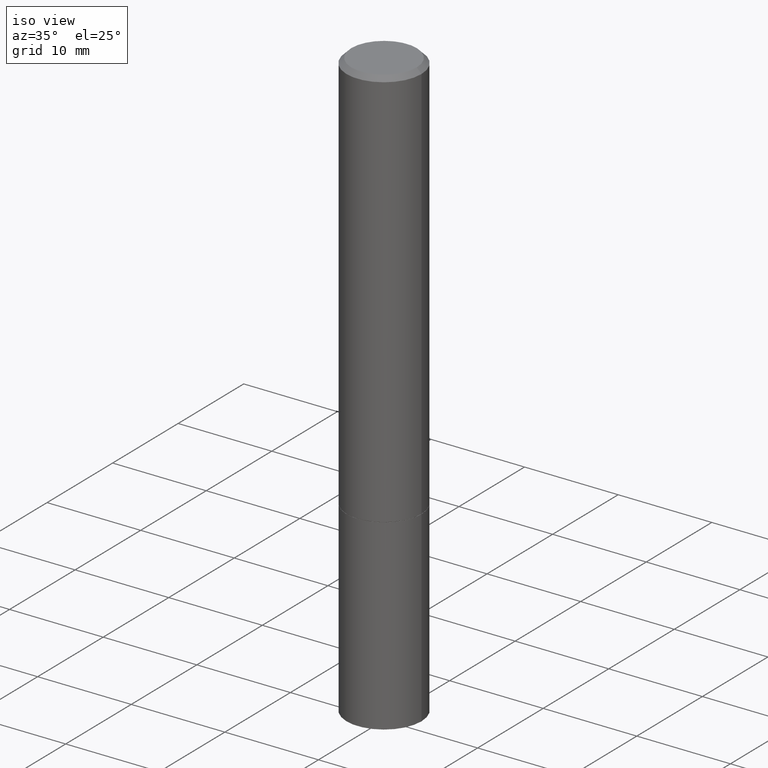
[diagram: clean part render]
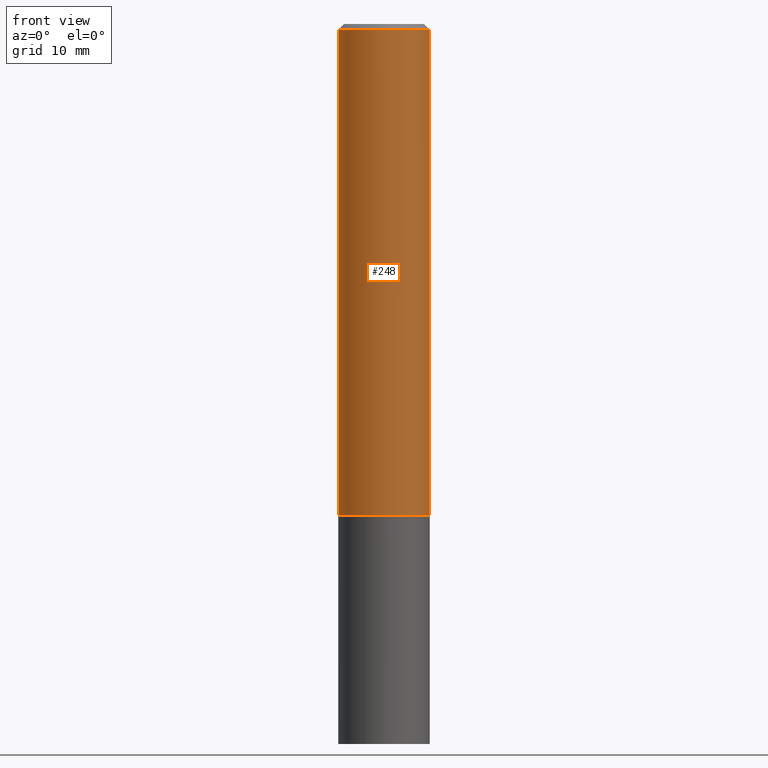
[diagram: tour spotlight — one face highlighted and labeled with its STEP entity id]
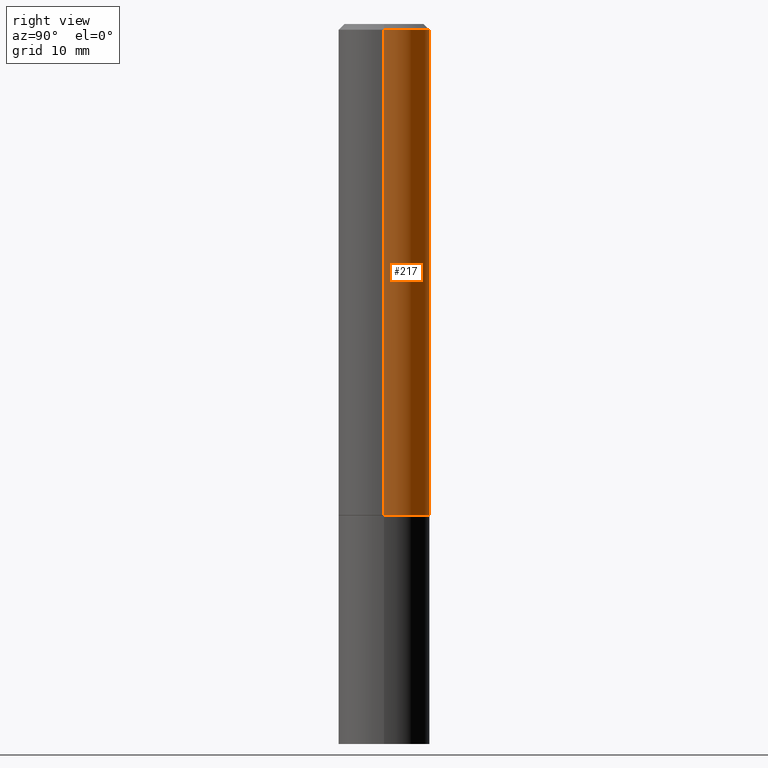
[diagram: tour spotlight — one face highlighted and labeled with its STEP entity id]
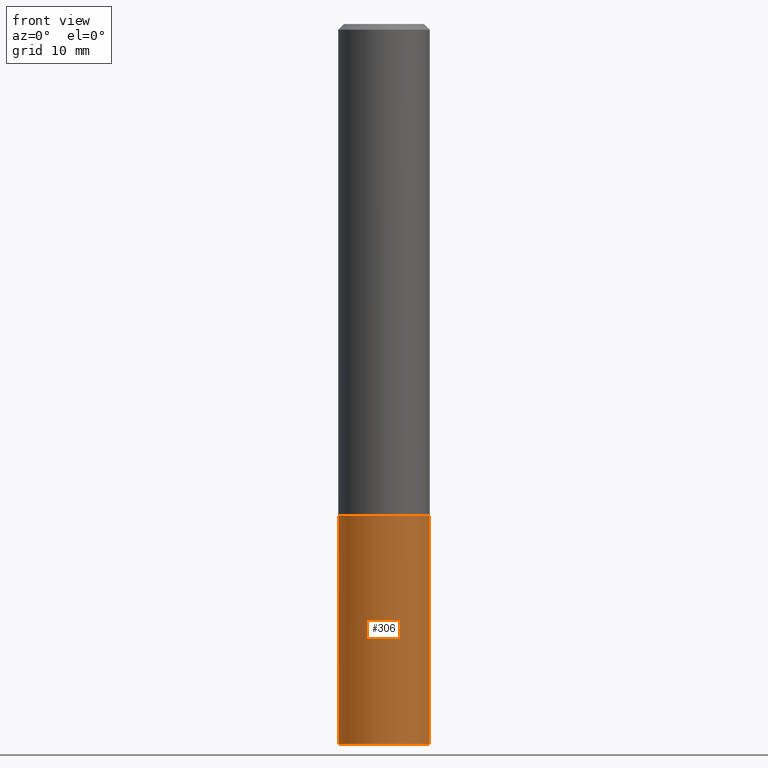
[diagram: tour spotlight — one face highlighted and labeled with its STEP entity id]
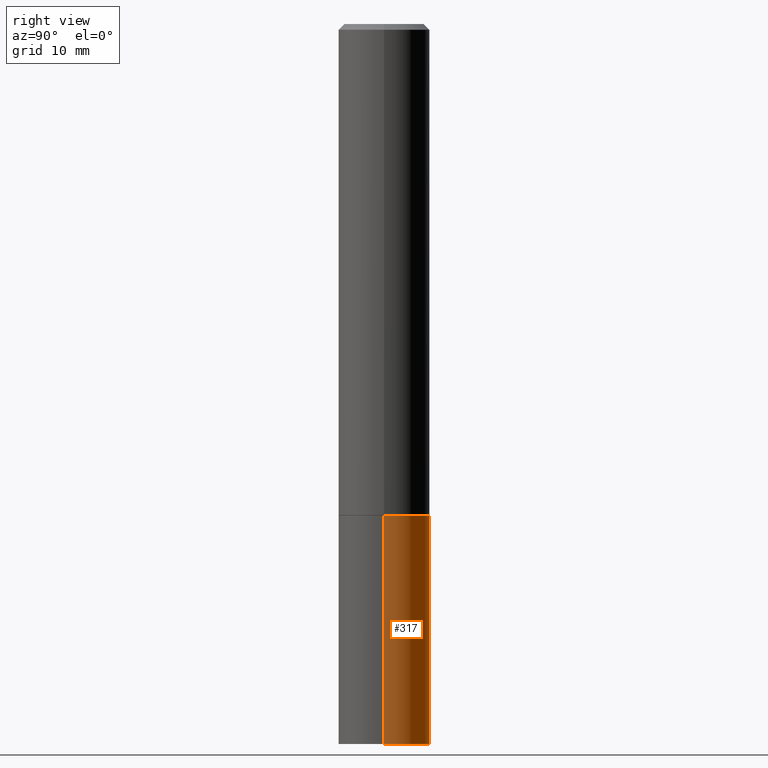
[diagram: tour spotlight — one face highlighted and labeled with its STEP entity id]
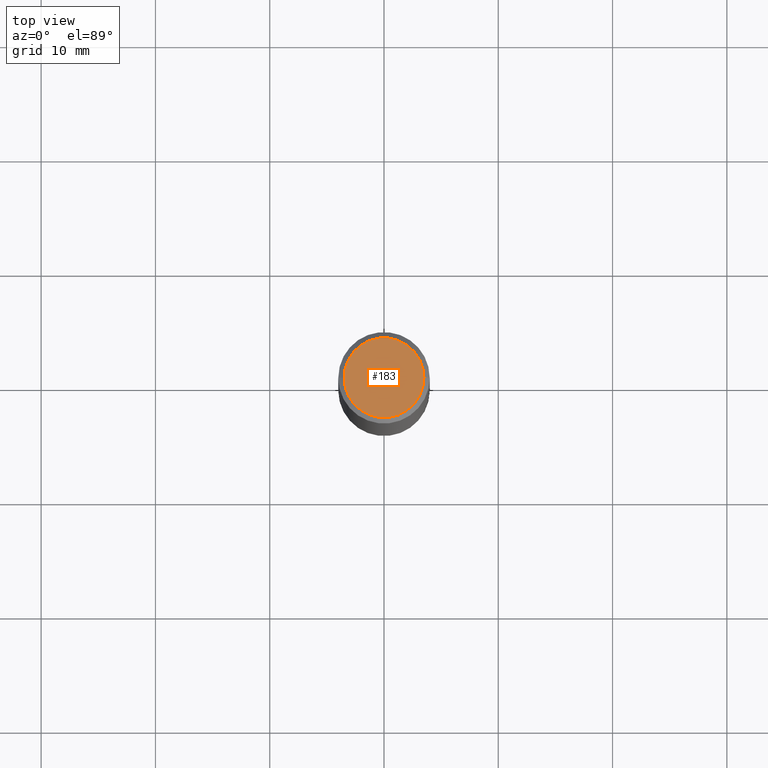
[diagram: tour spotlight — one face highlighted and labeled with its STEP entity id]
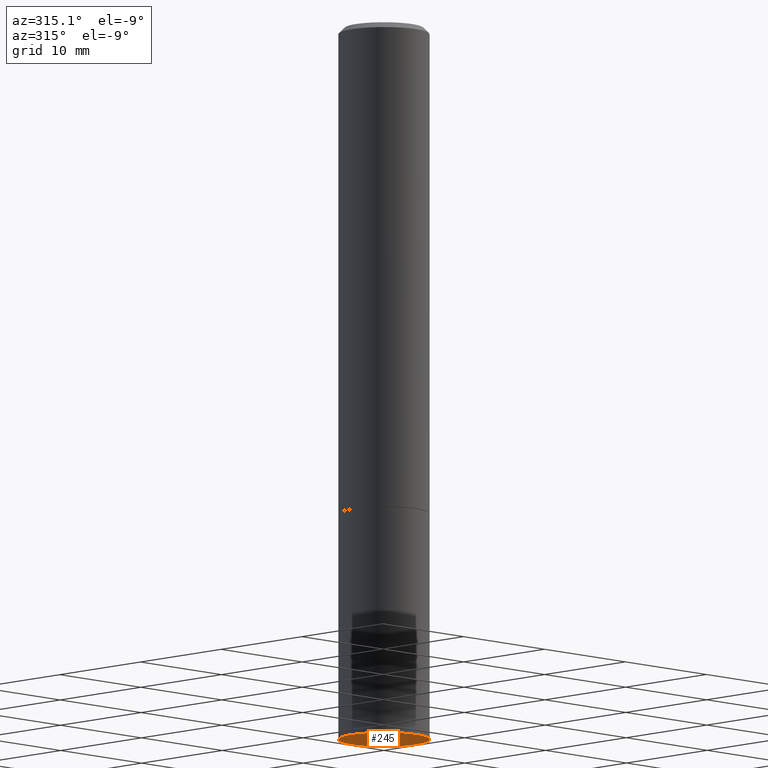
[diagram: tour spotlight — one face highlighted and labeled with its STEP entity id]
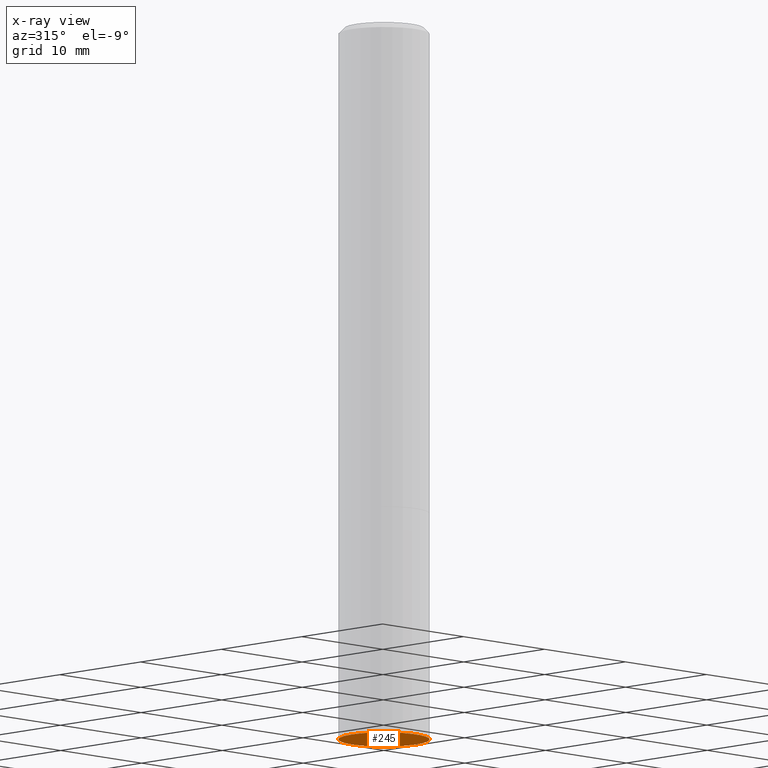
[diagram: x-ray of the same camera — body ghosted, this tour face saturated]
A machine part: a face-by-face anatomy tour. The part has 12 B-rep faces; the first image is the clean iso view, then the 6 largest visible faces are spotlighted one at a time (largest first), each with its STEP entity span.

Face 1 — front view, entity #248. In plain terms, the highlighted cylindrical surface (partial cylindrical patch) has radius 4.0005 mm, axis along (-0, 0, 1).
Definition (entity closure, byte-faithful):
#1 = LINE ( 'NONE', #113, #77 ) ;
#10 = EDGE_CURVE ( 'NONE', #230, #295, #103, .T. ) ;
#11 = VECTOR ( 'NONE', #270, 39.37007874015748143 ) ;
#32 = CARTESIAN_POINT ( 'NONE',  ( 4.890937612370279289E-31, -6.982962677686299005E-17, -0.02000000000000002470 ) ) ;
#34 = DIRECTION ( 'NONE',  ( -2.445468806185136597E-29, 3.491481338843145583E-15, 1.000000000000000000 ) ) ;
#38 = FACE_OUTER_BOUND ( 'NONE', #127, .T. ) ;
#43 = ORIENTED_EDGE ( 'NONE', *, *, #117, .F. ) ;
#51 = EDGE_CURVE ( 'NONE', #242, #131, #97, .T. ) ;
#65 = CARTESIAN_POINT ( 'NONE',  ( 0.1574999999999998901, -1.099816621735586297E-15, 7.679978421878593829E-30 ) ) ;
#77 = VECTOR ( 'NONE', #199, 39.37007874015748143 ) ;
#94 = CYLINDRICAL_SURFACE ( 'NONE', #198, 0.1574999999999998901 ) ;
#97 = CIRCLE ( 'NONE', #277, 0.1575000000000000011 ) ;
#98 = CARTESIAN_POINT ( 'NONE',  ( -0.1574999999999998346, 1.029986994958722802E-15, -0.02000000000000002470 ) ) ;
#103 = CIRCLE ( 'NONE', #210, 0.1574999999999998346 ) ;
#113 = CARTESIAN_POINT ( 'NONE',  ( -0.1574999999999998901, 1.119104808822157012E-15, -7.747322767151471379E-30 ) ) ;
#117 = EDGE_CURVE ( 'NONE', #242, #230, #1, .T. ) ;
#127 = EDGE_LOOP ( 'NONE', ( #43, #360, #316, #185 ) ) ;
#130 = CARTESIAN_POINT ( 'NONE',  ( -0.1575000000000000011, -1.869428643160630319E-15, -1.691899999999999959 ) ) ;
#131 = VERTEX_POINT ( 'NONE', #325 ) ;
#139 = CARTESIAN_POINT ( 'NONE',  ( 0.1574999999999998346, -1.150358061425878091E-15, -0.02000000000000002470 ) ) ;
#173 = DIRECTION ( 'NONE',  ( 1.000000000000000000, -6.982962677686268288E-15, 0.000000000000000000 ) ) ;
#185 = ORIENTED_EDGE ( 'NONE', *, *, #10, .F. ) ;
#198 = AXIS2_PLACEMENT_3D ( 'NONE', #236, #348, #215 ) ;
#199 = DIRECTION ( 'NONE',  ( -2.445468806185136877E-29, 3.491481338843145188E-15, 1.000000000000000000 ) ) ;
#201 = DIRECTION ( 'NONE',  ( 1.000000000000000000, -6.982962677686265922E-15, 0.000000000000000000 ) ) ;
#210 = AXIS2_PLACEMENT_3D ( 'NONE', #32, #34, #201 ) ;
#215 = DIRECTION ( 'NONE',  ( 1.000000000000000000, -6.982962677686266711E-15, 4.876176775795935793E-29 ) ) ;
#230 = VERTEX_POINT ( 'NONE', #98 ) ;
#236 = CARTESIAN_POINT ( 'NONE',  ( 0.000000000000000000, 0.000000000000000000, 0.000000000000000000 ) ) ;
#242 = VERTEX_POINT ( 'NONE', #130 ) ;
#248 = ADVANCED_FACE ( 'NONE', ( #38 ), #94, .T. ) ;
#270 = DIRECTION ( 'NONE',  ( -2.445468806185136877E-29, 3.491481338843145188E-15, 1.000000000000000000 ) ) ;
#274 = EDGE_CURVE ( 'NONE', #131, #295, #321, .T. ) ;
#277 = AXIS2_PLACEMENT_3D ( 'NONE', #311, #346, #173 ) ;
#295 = VERTEX_POINT ( 'NONE', #139 ) ;
#311 = CARTESIAN_POINT ( 'NONE',  ( 4.137488673184632754E-29, -5.907237277188718068E-15, -1.691899999999999959 ) ) ;
#316 = ORIENTED_EDGE ( 'NONE', *, *, #274, .T. ) ;
#321 = LINE ( 'NONE', #65, #11 ) ;
#325 = CARTESIAN_POINT ( 'NONE',  ( 0.1575000000000000011, -7.007053898924305548E-15, -1.691899999999999959 ) ) ;
#346 = DIRECTION ( 'NONE',  ( -2.445468806185136597E-29, 3.491481338843145583E-15, 1.000000000000000000 ) ) ;
#348 = DIRECTION ( 'NONE',  ( -2.445468806185136597E-29, 3.491481338843145583E-15, 1.000000000000000000 ) ) ;
#360 = ORIENTED_EDGE ( 'NONE', *, *, #51, .T. ) ;

Face 2 — right view, entity #217. In plain terms, the highlighted cylindrical surface (partial cylindrical patch) has radius 4.0005 mm, axis along (-0, 0, 1).
Definition (entity closure, byte-faithful):
#1 = LINE ( 'NONE', #113, #77 ) ;
#9 = DIRECTION ( 'NONE',  ( -2.445468806185136597E-29, 3.491481338843145583E-15, 1.000000000000000000 ) ) ;
#11 = VECTOR ( 'NONE', #270, 39.37007874015748143 ) ;
#26 = EDGE_CURVE ( 'NONE', #131, #242, #188, .T. ) ;
#30 = ORIENTED_EDGE ( 'NONE', *, *, #274, .F. ) ;
#35 = AXIS2_PLACEMENT_3D ( 'NONE', #286, #83, #37 ) ;
#37 = DIRECTION ( 'NONE',  ( 1.000000000000000000, -6.982962677686265922E-15, 0.000000000000000000 ) ) ;
#45 = DIRECTION ( 'NONE',  ( -2.445468806185136597E-29, 3.491481338843145583E-15, 1.000000000000000000 ) ) ;
#65 = CARTESIAN_POINT ( 'NONE',  ( 0.1574999999999998901, -1.099816621735586297E-15, 7.679978421878593829E-30 ) ) ;
#68 = EDGE_LOOP ( 'NONE', ( #129, #347, #282, #30 ) ) ;
#70 = AXIS2_PLACEMENT_3D ( 'NONE', #259, #9, #315 ) ;
#77 = VECTOR ( 'NONE', #199, 39.37007874015748143 ) ;
#83 = DIRECTION ( 'NONE',  ( -2.445468806185136597E-29, 3.491481338843145583E-15, 1.000000000000000000 ) ) ;
#98 = CARTESIAN_POINT ( 'NONE',  ( -0.1574999999999998346, 1.029986994958722802E-15, -0.02000000000000002470 ) ) ;
#101 = EDGE_CURVE ( 'NONE', #295, #230, #239, .T. ) ;
#113 = CARTESIAN_POINT ( 'NONE',  ( -0.1574999999999998901, 1.119104808822157012E-15, -7.747322767151471379E-30 ) ) ;
#117 = EDGE_CURVE ( 'NONE', #242, #230, #1, .T. ) ;
#128 = CARTESIAN_POINT ( 'NONE',  ( 0.000000000000000000, 0.000000000000000000, 0.000000000000000000 ) ) ;
#129 = ORIENTED_EDGE ( 'NONE', *, *, #26, .T. ) ;
#130 = CARTESIAN_POINT ( 'NONE',  ( -0.1575000000000000011, -1.869428643160630319E-15, -1.691899999999999959 ) ) ;
#131 = VERTEX_POINT ( 'NONE', #325 ) ;
#139 = CARTESIAN_POINT ( 'NONE',  ( 0.1574999999999998346, -1.150358061425878091E-15, -0.02000000000000002470 ) ) ;
#188 = CIRCLE ( 'NONE', #70, 0.1575000000000000011 ) ;
#199 = DIRECTION ( 'NONE',  ( -2.445468806185136877E-29, 3.491481338843145188E-15, 1.000000000000000000 ) ) ;
#217 = ADVANCED_FACE ( 'NONE', ( #293 ), #289, .T. ) ;
#230 = VERTEX_POINT ( 'NONE', #98 ) ;
#239 = CIRCLE ( 'NONE', #35, 0.1574999999999998346 ) ;
#242 = VERTEX_POINT ( 'NONE', #130 ) ;
#259 = CARTESIAN_POINT ( 'NONE',  ( 4.137488673184632754E-29, -5.907237277188718068E-15, -1.691899999999999959 ) ) ;
#270 = DIRECTION ( 'NONE',  ( -2.445468806185136877E-29, 3.491481338843145188E-15, 1.000000000000000000 ) ) ;
#274 = EDGE_CURVE ( 'NONE', #131, #295, #321, .T. ) ;
#282 = ORIENTED_EDGE ( 'NONE', *, *, #101, .F. ) ;
#286 = CARTESIAN_POINT ( 'NONE',  ( 4.890937612370279289E-31, -6.982962677686299005E-17, -0.02000000000000002470 ) ) ;
#289 = CYLINDRICAL_SURFACE ( 'NONE', #308, 0.1574999999999998901 ) ;
#293 = FACE_OUTER_BOUND ( 'NONE', #68, .T. ) ;
#295 = VERTEX_POINT ( 'NONE', #139 ) ;
#308 = AXIS2_PLACEMENT_3D ( 'NONE', #128, #45, #356 ) ;
#315 = DIRECTION ( 'NONE',  ( 1.000000000000000000, -6.982962677686268288E-15, 0.000000000000000000 ) ) ;
#321 = LINE ( 'NONE', #65, #11 ) ;
#325 = CARTESIAN_POINT ( 'NONE',  ( 0.1575000000000000011, -7.007053898924305548E-15, -1.691899999999999959 ) ) ;
#347 = ORIENTED_EDGE ( 'NONE', *, *, #117, .T. ) ;
#356 = DIRECTION ( 'NONE',  ( 1.000000000000000000, -6.982962677686266711E-15, 4.876176775795935793E-29 ) ) ;

Face 3 — front view, entity #306. In plain terms, the highlighted cylindrical surface (partial cylindrical patch) has radius 4.0005 mm, axis along (-0, 0, 1).
Definition (entity closure, byte-faithful):
#15 = EDGE_CURVE ( 'NONE', #133, #358, #339, .T. ) ;
#22 = CARTESIAN_POINT ( 'NONE',  ( 0.1575000000000000011, -1.099816621735586889E-15, 7.679978421878598033E-30 ) ) ;
#61 = VERTEX_POINT ( 'NONE', #148 ) ;
#64 = AXIS2_PLACEMENT_3D ( 'NONE', #261, #231, #89 ) ;
#75 = DIRECTION ( 'NONE',  ( 1.000000000000000000, -6.982962677686265922E-15, 4.876176775795935232E-29 ) ) ;
#82 = EDGE_CURVE ( 'NONE', #133, #312, #118, .T. ) ;
#86 = DIRECTION ( 'NONE',  ( -2.445468806185136877E-29, 3.491481338843145188E-15, 1.000000000000000000 ) ) ;
#89 = DIRECTION ( 'NONE',  ( 1.000000000000000000, -6.982962677686261977E-15, 0.000000000000000000 ) ) ;
#95 = ORIENTED_EDGE ( 'NONE', *, *, #82, .F. ) ;
#99 = ORIENTED_EDGE ( 'NONE', *, *, #191, .F. ) ;
#118 = LINE ( 'NONE', #344, #351 ) ;
#125 = LINE ( 'NONE', #22, #174 ) ;
#133 = VERTEX_POINT ( 'NONE', #186 ) ;
#140 = CARTESIAN_POINT ( 'NONE',  ( 0.000000000000000000, 0.000000000000000000, 0.000000000000000000 ) ) ;
#148 = CARTESIAN_POINT ( 'NONE',  ( 0.1575000000000000011, -7.010545380263150133E-15, -1.692900000000000293 ) ) ;
#151 = DIRECTION ( 'NONE',  ( 1.000000000000000000, -6.982962677686268288E-15, 0.000000000000000000 ) ) ;
#152 = EDGE_CURVE ( 'NONE', #358, #61, #125, .T. ) ;
#155 = DIRECTION ( 'NONE',  ( -2.445468806185136877E-29, 3.491481338843145188E-15, 1.000000000000000000 ) ) ;
#158 = AXIS2_PLACEMENT_3D ( 'NONE', #140, #329, #75 ) ;
#163 = FACE_OUTER_BOUND ( 'NONE', #309, .T. ) ;
#174 = VECTOR ( 'NONE', #155, 39.37007874015748143 ) ;
#180 = DIRECTION ( 'NONE',  ( -2.445468806185136597E-29, 3.491481338843145583E-15, 1.000000000000000000 ) ) ;
#186 = CARTESIAN_POINT ( 'NONE',  ( -0.1575000000000000011, -6.166220152807950602E-15, -2.480300000000000171 ) ) ;
#191 = EDGE_CURVE ( 'NONE', #312, #61, #361, .T. ) ;
#225 = CARTESIAN_POINT ( 'NONE',  ( -0.1575000000000000011, -6.166220152807950602E-15, -1.692900000000000293 ) ) ;
#226 = ORIENTED_EDGE ( 'NONE', *, *, #152, .T. ) ;
#229 = AXIS2_PLACEMENT_3D ( 'NONE', #268, #180, #151 ) ;
#231 = DIRECTION ( 'NONE',  ( -2.445468806185136597E-29, 3.491481338843145583E-15, 1.000000000000000000 ) ) ;
#244 = ORIENTED_EDGE ( 'NONE', *, *, #15, .T. ) ;
#250 = CYLINDRICAL_SURFACE ( 'NONE', #158, 0.1575000000000000011 ) ;
#261 = CARTESIAN_POINT ( 'NONE',  ( 6.065496279980994755E-29, -8.659921164732655335E-15, -2.480300000000000171 ) ) ;
#268 = CARTESIAN_POINT ( 'NONE',  ( 4.139934141990818918E-29, -5.910728758527562653E-15, -1.692900000000000293 ) ) ;
#275 = CARTESIAN_POINT ( 'NONE',  ( 0.1575000000000000011, -9.759737786468242027E-15, -2.480300000000000171 ) ) ;
#306 = ADVANCED_FACE ( 'NONE', ( #163 ), #250, .T. ) ;
#309 = EDGE_LOOP ( 'NONE', ( #95, #244, #226, #99 ) ) ;
#312 = VERTEX_POINT ( 'NONE', #225 ) ;
#329 = DIRECTION ( 'NONE',  ( -2.445468806185136597E-29, 3.491481338843145583E-15, 1.000000000000000000 ) ) ;
#339 = CIRCLE ( 'NONE', #64, 0.1575000000000000011 ) ;
#344 = CARTESIAN_POINT ( 'NONE',  ( -0.1575000000000000011, 1.119104808822157801E-15, -7.747322767151475583E-30 ) ) ;
#351 = VECTOR ( 'NONE', #86, 39.37007874015748143 ) ;
#358 = VERTEX_POINT ( 'NONE', #275 ) ;
#361 = CIRCLE ( 'NONE', #229, 0.1575000000000000011 ) ;

Face 4 — right view, entity #317. In plain terms, the highlighted cylindrical surface (partial cylindrical patch) has radius 4.0005 mm, axis along (-0, 0, 1).
Definition (entity closure, byte-faithful):
#22 = CARTESIAN_POINT ( 'NONE',  ( 0.1575000000000000011, -1.099816621735586889E-15, 7.679978421878598033E-30 ) ) ;
#23 = DIRECTION ( 'NONE',  ( 1.000000000000000000, -6.982962677686265922E-15, 4.876176775795935232E-29 ) ) ;
#25 = EDGE_CURVE ( 'NONE', #61, #312, #55, .T. ) ;
#55 = CIRCLE ( 'NONE', #256, 0.1575000000000000011 ) ;
#61 = VERTEX_POINT ( 'NONE', #148 ) ;
#71 = AXIS2_PLACEMENT_3D ( 'NONE', #218, #72, #23 ) ;
#72 = DIRECTION ( 'NONE',  ( -2.445468806185136597E-29, 3.491481338843145583E-15, 1.000000000000000000 ) ) ;
#82 = EDGE_CURVE ( 'NONE', #133, #312, #118, .T. ) ;
#86 = DIRECTION ( 'NONE',  ( -2.445468806185136877E-29, 3.491481338843145188E-15, 1.000000000000000000 ) ) ;
#92 = ORIENTED_EDGE ( 'NONE', *, *, #341, .T. ) ;
#110 = CARTESIAN_POINT ( 'NONE',  ( 6.065496279980994755E-29, -8.659921164732655335E-15, -2.480300000000000171 ) ) ;
#118 = LINE ( 'NONE', #344, #351 ) ;
#125 = LINE ( 'NONE', #22, #174 ) ;
#133 = VERTEX_POINT ( 'NONE', #186 ) ;
#138 = CYLINDRICAL_SURFACE ( 'NONE', #71, 0.1575000000000000011 ) ;
#147 = DIRECTION ( 'NONE',  ( 1.000000000000000000, -6.982962677686268288E-15, 0.000000000000000000 ) ) ;
#148 = CARTESIAN_POINT ( 'NONE',  ( 0.1575000000000000011, -7.010545380263150133E-15, -1.692900000000000293 ) ) ;
#152 = EDGE_CURVE ( 'NONE', #358, #61, #125, .T. ) ;
#155 = DIRECTION ( 'NONE',  ( -2.445468806185136877E-29, 3.491481338843145188E-15, 1.000000000000000000 ) ) ;
#174 = VECTOR ( 'NONE', #155, 39.37007874015748143 ) ;
#186 = CARTESIAN_POINT ( 'NONE',  ( -0.1575000000000000011, -6.166220152807950602E-15, -2.480300000000000171 ) ) ;
#192 = ORIENTED_EDGE ( 'NONE', *, *, #82, .T. ) ;
#204 = DIRECTION ( 'NONE',  ( -2.445468806185136597E-29, 3.491481338843145583E-15, 1.000000000000000000 ) ) ;
#218 = CARTESIAN_POINT ( 'NONE',  ( 0.000000000000000000, 0.000000000000000000, 0.000000000000000000 ) ) ;
#219 = EDGE_LOOP ( 'NONE', ( #92, #192, #338, #319 ) ) ;
#225 = CARTESIAN_POINT ( 'NONE',  ( -0.1575000000000000011, -6.166220152807950602E-15, -1.692900000000000293 ) ) ;
#255 = CARTESIAN_POINT ( 'NONE',  ( 4.139934141990818918E-29, -5.910728758527562653E-15, -1.692900000000000293 ) ) ;
#256 = AXIS2_PLACEMENT_3D ( 'NONE', #255, #204, #147 ) ;
#275 = CARTESIAN_POINT ( 'NONE',  ( 0.1575000000000000011, -9.759737786468242027E-15, -2.480300000000000171 ) ) ;
#278 = AXIS2_PLACEMENT_3D ( 'NONE', #110, #365, #328 ) ;
#312 = VERTEX_POINT ( 'NONE', #225 ) ;
#317 = ADVANCED_FACE ( 'NONE', ( #334 ), #138, .T. ) ;
#319 = ORIENTED_EDGE ( 'NONE', *, *, #152, .F. ) ;
#322 = CIRCLE ( 'NONE', #278, 0.1575000000000000011 ) ;
#328 = DIRECTION ( 'NONE',  ( 1.000000000000000000, -6.982962677686261977E-15, 0.000000000000000000 ) ) ;
#334 = FACE_OUTER_BOUND ( 'NONE', #219, .T. ) ;
#338 = ORIENTED_EDGE ( 'NONE', *, *, #25, .F. ) ;
#341 = EDGE_CURVE ( 'NONE', #358, #133, #322, .T. ) ;
#344 = CARTESIAN_POINT ( 'NONE',  ( -0.1575000000000000011, 1.119104808822157801E-15, -7.747322767151475583E-30 ) ) ;
#351 = VECTOR ( 'NONE', #86, 39.37007874015748143 ) ;
#358 = VERTEX_POINT ( 'NONE', #275 ) ;
#365 = DIRECTION ( 'NONE',  ( -2.445468806185136597E-29, 3.491481338843145583E-15, 1.000000000000000000 ) ) ;

Face 5 — top view, entity #183. In plain terms, the highlighted planar face has unit normal (0, -0, -1).
Definition (entity closure, byte-faithful):
#18 = CIRCLE ( 'NONE', #221, 0.1374999999999998446 ) ;
#21 = CARTESIAN_POINT ( 'NONE',  ( 9.601573681818602922E-16, 0.1374999999999998446, -4.779444278458817077E-16 ) ) ;
#62 = DIRECTION ( 'NONE',  ( -1.000000000000000000, 6.982962677686265922E-15, -4.876176775795935793E-29 ) ) ;
#67 = CARTESIAN_POINT ( 'NONE',  ( 0.1374999999999998446, -1.046838268059731308E-15, 4.268512490107428597E-18 ) ) ;
#69 = CARTESIAN_POINT ( 'NONE',  ( -0.1374999999999998446, 9.950721815702915469E-16, 4.268512490093574228E-18 ) ) ;
#90 = ORIENTED_EDGE ( 'NONE', *, *, #168, .T. ) ;
#106 = EDGE_LOOP ( 'NONE', ( #269, #90 ) ) ;
#109 = AXIS2_PLACEMENT_3D ( 'NONE', #21, #287, #62 ) ;
#120 = VERTEX_POINT ( 'NONE', #69 ) ;
#124 = PLANE ( 'NONE',  #109 ) ;
#132 = CARTESIAN_POINT ( 'NONE',  ( -1.043851414335219820E-46, 1.490343170380447200E-32, 4.268512490100411279E-18 ) ) ;
#136 = VERTEX_POINT ( 'NONE', #67 ) ;
#168 = EDGE_CURVE ( 'NONE', #136, #120, #18, .T. ) ;
#178 = DIRECTION ( 'NONE',  ( -2.445468806185136597E-29, 3.491481338843145583E-15, 1.000000000000000000 ) ) ;
#183 = ADVANCED_FACE ( 'NONE', ( #352 ), #124, .F. ) ;
#200 = EDGE_CURVE ( 'NONE', #120, #136, #257, .T. ) ;
#207 = CARTESIAN_POINT ( 'NONE',  ( -1.043851414335219820E-46, 1.490343170380447200E-32, 4.268512490100411279E-18 ) ) ;
#221 = AXIS2_PLACEMENT_3D ( 'NONE', #207, #272, #318 ) ;
#243 = DIRECTION ( 'NONE',  ( 1.000000000000000000, -6.982962677686265922E-15, 4.876173381029105647E-29 ) ) ;
#257 = CIRCLE ( 'NONE', #353, 0.1374999999999998446 ) ;
#269 = ORIENTED_EDGE ( 'NONE', *, *, #200, .T. ) ;
#272 = DIRECTION ( 'NONE',  ( -2.445468806185136597E-29, 3.491481338843145583E-15, 1.000000000000000000 ) ) ;
#287 = DIRECTION ( 'NONE',  ( 2.438088387897960049E-29, -3.491481338843145188E-15, -1.000000000000000000 ) ) ;
#318 = DIRECTION ( 'NONE',  ( 1.000000000000000000, -6.982962677686265922E-15, 4.876173381029105647E-29 ) ) ;
#352 = FACE_OUTER_BOUND ( 'NONE', #106, .T. ) ;
#353 = AXIS2_PLACEMENT_3D ( 'NONE', #132, #178, #243 ) ;

Face 6 — auxiliary view, entity #245. An x-ray twin of the same camera follows (body ghosted, this face saturated) — the face is partly hidden behind the body. In plain terms, the highlighted planar face has unit normal (0, -0, -1).
Definition (entity closure, byte-faithful):
#15 = EDGE_CURVE ( 'NONE', #133, #358, #339, .T. ) ;
#39 = AXIS2_PLACEMENT_3D ( 'NONE', #40, #102, #154 ) ;
#40 = CARTESIAN_POINT ( 'NONE',  ( 1.099816621735647434E-15, 0.1574999999999913136, -2.480300000000001059 ) ) ;
#64 = AXIS2_PLACEMENT_3D ( 'NONE', #261, #231, #89 ) ;
#89 = DIRECTION ( 'NONE',  ( 1.000000000000000000, -6.982962677686261977E-15, 0.000000000000000000 ) ) ;
#102 = DIRECTION ( 'NONE',  ( 2.438088387897960049E-29, -3.491481338843145188E-15, -1.000000000000000000 ) ) ;
#110 = CARTESIAN_POINT ( 'NONE',  ( 6.065496279980994755E-29, -8.659921164732655335E-15, -2.480300000000000171 ) ) ;
#133 = VERTEX_POINT ( 'NONE', #186 ) ;
#154 = DIRECTION ( 'NONE',  ( -1.000000000000000000, 6.982962677686265922E-15, -4.876176775795935793E-29 ) ) ;
#156 = EDGE_LOOP ( 'NONE', ( #170, #355 ) ) ;
#170 = ORIENTED_EDGE ( 'NONE', *, *, #341, .F. ) ;
#186 = CARTESIAN_POINT ( 'NONE',  ( -0.1575000000000000011, -6.166220152807950602E-15, -2.480300000000000171 ) ) ;
#213 = FACE_OUTER_BOUND ( 'NONE', #156, .T. ) ;
#231 = DIRECTION ( 'NONE',  ( -2.445468806185136597E-29, 3.491481338843145583E-15, 1.000000000000000000 ) ) ;
#245 = ADVANCED_FACE ( 'NONE', ( #213 ), #359, .T. ) ;
#261 = CARTESIAN_POINT ( 'NONE',  ( 6.065496279980994755E-29, -8.659921164732655335E-15, -2.480300000000000171 ) ) ;
#275 = CARTESIAN_POINT ( 'NONE',  ( 0.1575000000000000011, -9.759737786468242027E-15, -2.480300000000000171 ) ) ;
#278 = AXIS2_PLACEMENT_3D ( 'NONE', #110, #365, #328 ) ;
#322 = CIRCLE ( 'NONE', #278, 0.1575000000000000011 ) ;
#328 = DIRECTION ( 'NONE',  ( 1.000000000000000000, -6.982962677686261977E-15, 0.000000000000000000 ) ) ;
#339 = CIRCLE ( 'NONE', #64, 0.1575000000000000011 ) ;
#341 = EDGE_CURVE ( 'NONE', #358, #133, #322, .T. ) ;
#355 = ORIENTED_EDGE ( 'NONE', *, *, #15, .F. ) ;
#358 = VERTEX_POINT ( 'NONE', #275 ) ;
#359 = PLANE ( 'NONE',  #39 ) ;
#365 = DIRECTION ( 'NONE',  ( -2.445468806185136597E-29, 3.491481338843145583E-15, 1.000000000000000000 ) ) ;